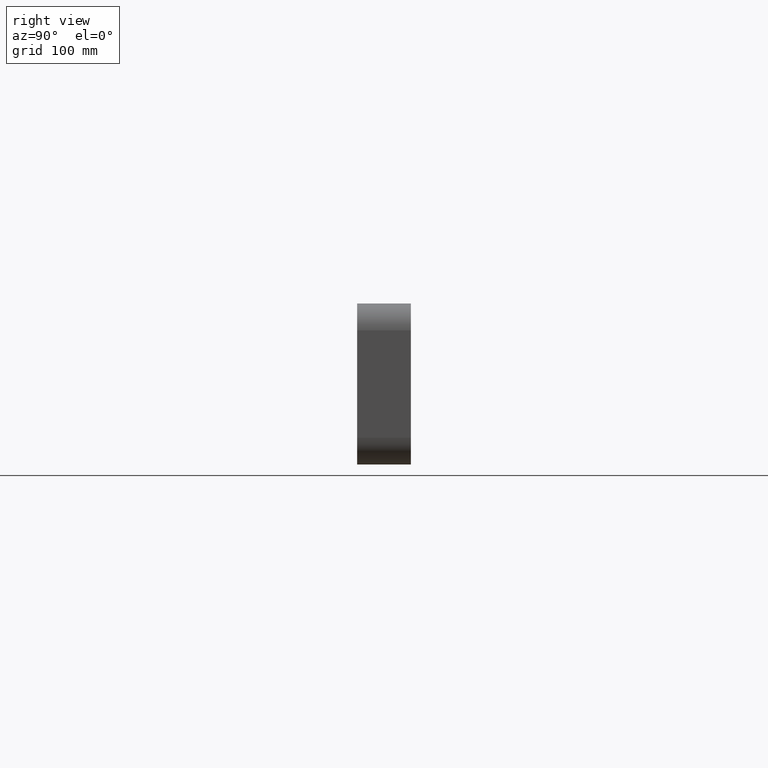
[diagram: clean part render]
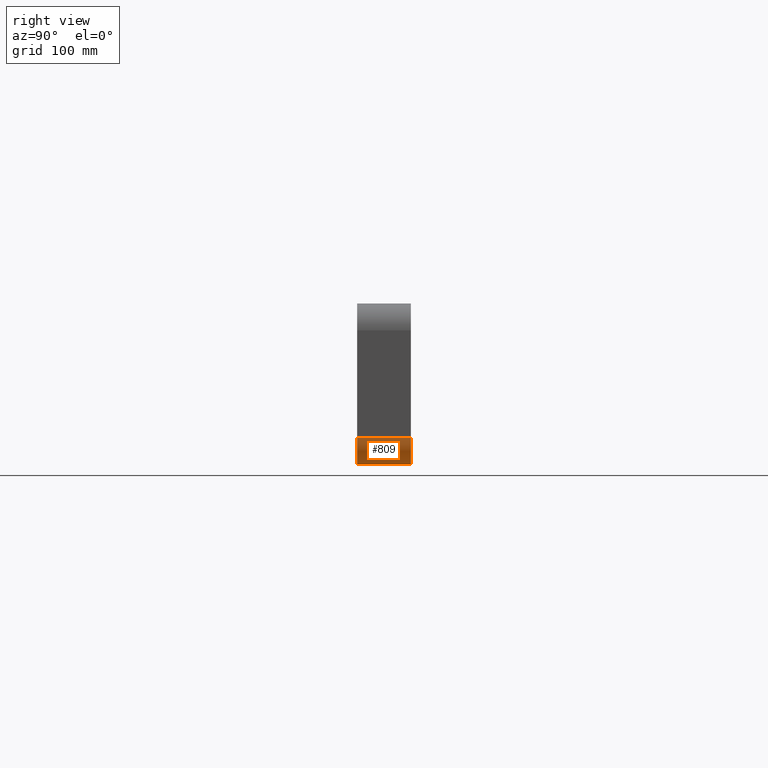
[diagram: same view with one face highlighted and labeled with its STEP entity id]
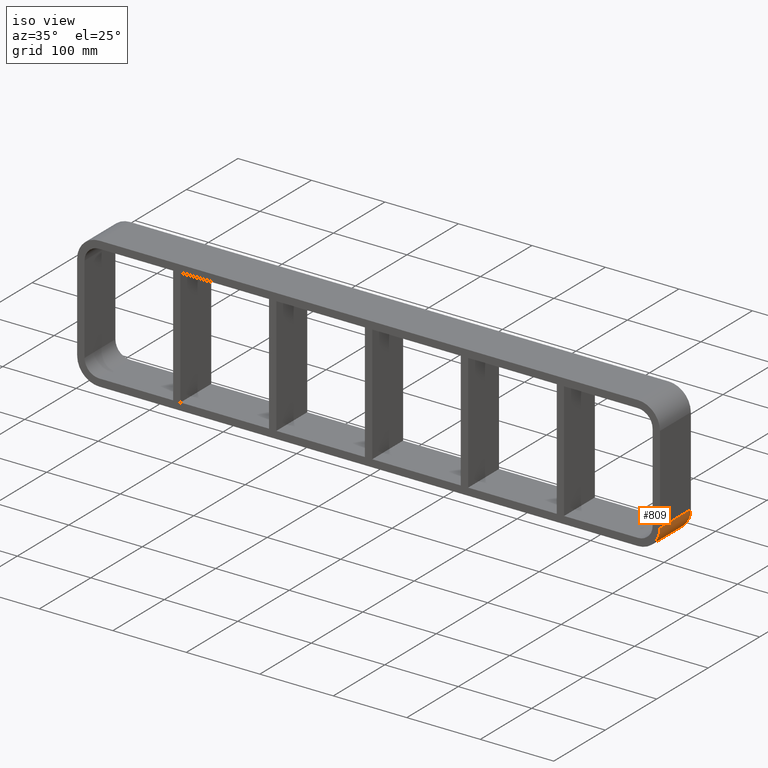
[diagram: same view with one face highlighted and labeled with its STEP entity id]
A machine part, right view. The second image highlights one B-rep face of the part: STEP entity #809.
A second angle (iso view) of the same face is appended — the face is thin or edge-on in the first view.
In plain terms, the highlighted cylindrical surface (edge-blend (fillet) strip) has radius 30 mm, axis along (0, 1, 0).
Its self-contained STEP definition (entity closure, byte-faithful):
#768=CARTESIAN_POINT('',(366.50000000000006,0.0,-59.750000000000014));
#769=DIRECTION('',(0.0,1.0,0.0));
#770=DIRECTION('',(0.707106781186547,0.0,-0.707106781186547));
#771=AXIS2_PLACEMENT_3D('',#768,#769,#770);
#772=CYLINDRICAL_SURFACE('',#771,30.000000000000004);
#773=CARTESIAN_POINT('',(366.50000000000006,57.0,-89.750000000000014));
#774=VERTEX_POINT('',#773);
#775=CARTESIAN_POINT('',(396.50000000000006,57.0,-59.750000000000014));
#776=VERTEX_POINT('',#775);
#777=CARTESIAN_POINT('',(366.50000000000006,57.0,-59.750000000000014));
#778=DIRECTION('',(0.0,-1.0,0.0));
#779=DIRECTION('',(0.707106781186547,0.0,-0.707106781186547));
#780=AXIS2_PLACEMENT_3D('',#777,#778,#779);
#781=CIRCLE('',#780,30.0);
#782=EDGE_CURVE('',#774,#776,#781,.T.);
#783=ORIENTED_EDGE('',*,*,#782,.T.);
#784=CARTESIAN_POINT('',(396.50000000000006,-3.0,-59.750000000000014));
#785=VERTEX_POINT('',#784);
#786=CARTESIAN_POINT('',(396.50000000000006,57.0,-59.750000000000014));
#787=DIRECTION('',(0.0,-1.0,0.0));
#788=VECTOR('',#787,60.0);
#789=LINE('',#786,#788);
#790=EDGE_CURVE('',#776,#785,#789,.T.);
#791=ORIENTED_EDGE('',*,*,#790,.T.);
#792=CARTESIAN_POINT('',(366.50000000000006,-3.0,-89.750000000000014));
#793=VERTEX_POINT('',#792);
#794=CARTESIAN_POINT('',(366.50000000000006,-3.0,-59.750000000000014));
#795=DIRECTION('',(0.0,1.0,0.0));
#796=DIRECTION('',(0.707106781186547,0.0,-0.707106781186547));
#797=AXIS2_PLACEMENT_3D('',#794,#795,#796);
#798=CIRCLE('',#797,30.0);
#799=EDGE_CURVE('',#785,#793,#798,.T.);
#800=ORIENTED_EDGE('',*,*,#799,.T.);
#801=CARTESIAN_POINT('',(366.50000000000006,-3.0,-89.750000000000014));
#802=DIRECTION('',(0.0,1.0,0.0));
#803=VECTOR('',#802,60.0);
#804=LINE('',#801,#803);
#805=EDGE_CURVE('',#793,#774,#804,.T.);
#806=ORIENTED_EDGE('',*,*,#805,.T.);
#807=EDGE_LOOP('',(#783,#791,#800,#806));
#808=FACE_OUTER_BOUND('',#807,.T.);
#809=ADVANCED_FACE('',(#808),#772,.T.);